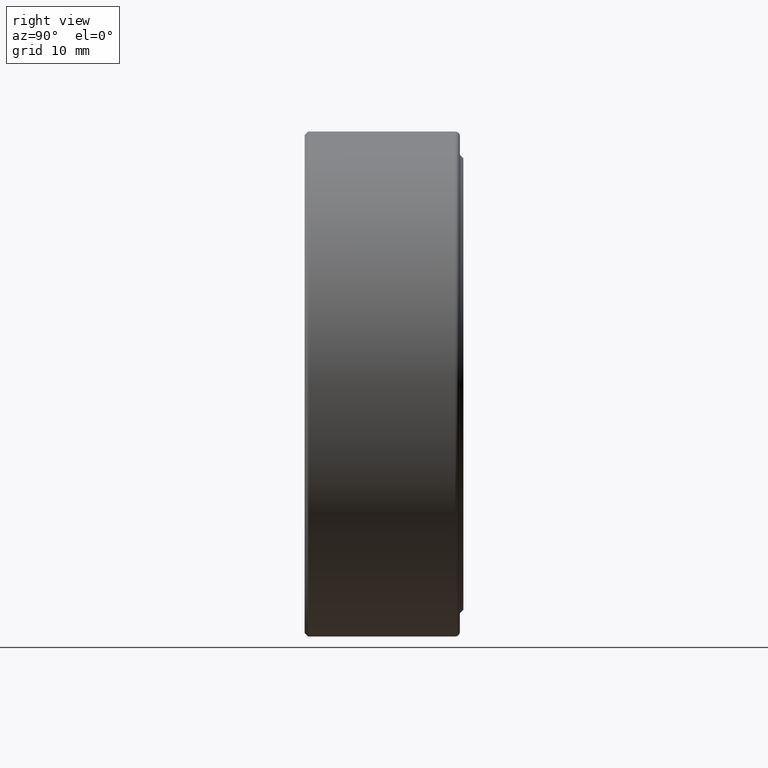
[diagram: clean part render]
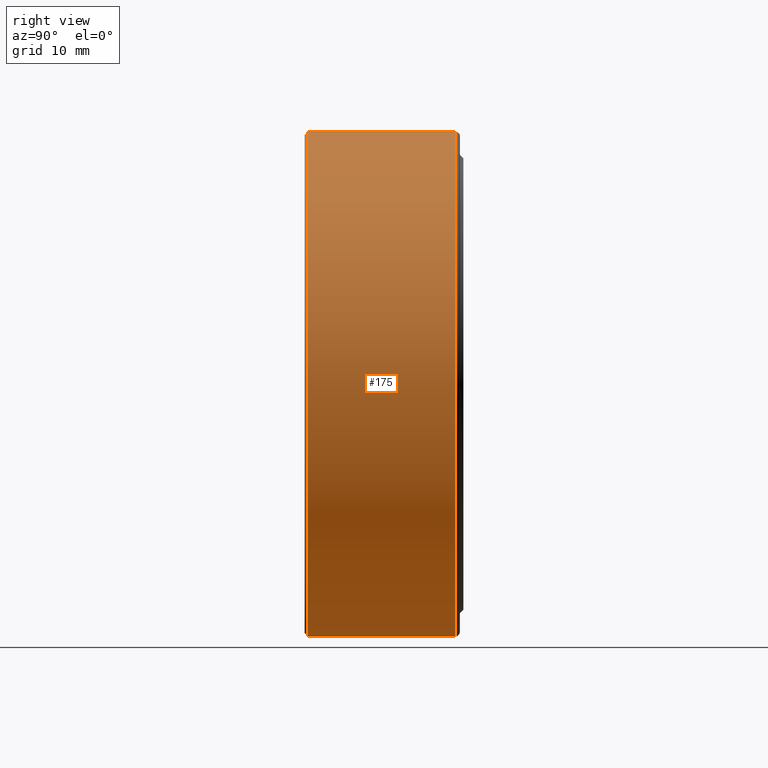
[diagram: same view with one face highlighted and labeled with its STEP entity id]
A machine part, right view. The second image highlights one B-rep face of the part: STEP entity #175.
In plain terms, the highlighted cylindrical surface (bore or boss wall) has radius 27.7812 mm, axis along (-0, 1, -0).
Its self-contained STEP definition (entity closure, byte-faithful):
#38 = FACE_OUTER_BOUND ( 'NONE', #343, .T. ) ;
#40 = CARTESIAN_POINT ( 'NONE',  ( 0.0000000000000000000, 0.6524999999999997500, 1.093750000000000000 ) ) ;
#91 = CARTESIAN_POINT ( 'NONE',  ( 0.0000000000000000000, 0.0000000000000000000, 0.0000000000000000000 ) ) ;
#97 = CARTESIAN_POINT ( 'NONE',  ( 0.0000000000000000000, 0.6524999999999997500, 0.0000000000000000000 ) ) ;
#139 = CARTESIAN_POINT ( 'NONE',  ( 0.0000000000000000000, 0.01500000000000004500, 1.093750000000000000 ) ) ;
#148 = DIRECTION ( 'NONE',  ( 0.0000000000000000000, 0.0000000000000000000, 1.000000000000000000 ) ) ;
#166 = EDGE_CURVE ( 'NONE', #380, #380, #422, .T. ) ;
#175 = ADVANCED_FACE ( 'NONE', ( #38, #248 ), #592, .T. ) ;
#184 = EDGE_CURVE ( 'NONE', #489, #489, #484, .T. ) ;
#188 = DIRECTION ( 'NONE',  ( 0.0000000000000000000, 0.0000000000000000000, 1.000000000000000000 ) ) ;
#192 = DIRECTION ( 'NONE',  ( -0.0000000000000000000, 1.000000000000000000, -0.0000000000000000000 ) ) ;
#195 = ORIENTED_EDGE ( 'NONE', *, *, #184, .F. ) ;
#212 = ORIENTED_EDGE ( 'NONE', *, *, #166, .T. ) ;
#213 = AXIS2_PLACEMENT_3D ( 'NONE', #91, #435, #188 ) ;
#245 = AXIS2_PLACEMENT_3D ( 'NONE', #97, #192, #148 ) ;
#248 = FACE_OUTER_BOUND ( 'NONE', #342, .T. ) ;
#298 = DIRECTION ( 'NONE',  ( -0.0000000000000000000, 1.000000000000000000, -0.0000000000000000000 ) ) ;
#342 = EDGE_LOOP ( 'NONE', ( #212 ) ) ;
#343 = EDGE_LOOP ( 'NONE', ( #195 ) ) ;
#380 = VERTEX_POINT ( 'NONE', #139 ) ;
#422 = CIRCLE ( 'NONE', #509, 1.093750000000000000 ) ;
#435 = DIRECTION ( 'NONE',  ( -0.0000000000000000000, 1.000000000000000000, -0.0000000000000000000 ) ) ;
#484 = CIRCLE ( 'NONE', #245, 1.093750000000000000 ) ;
#489 = VERTEX_POINT ( 'NONE', #40 ) ;
#509 = AXIS2_PLACEMENT_3D ( 'NONE', #526, #298, #568 ) ;
#526 = CARTESIAN_POINT ( 'NONE',  ( 0.0000000000000000000, 0.01500000000000004500, 0.0000000000000000000 ) ) ;
#568 = DIRECTION ( 'NONE',  ( 0.0000000000000000000, 0.0000000000000000000, 1.000000000000000000 ) ) ;
#592 = CYLINDRICAL_SURFACE ( 'NONE', #213, 1.093750000000000000 ) ;